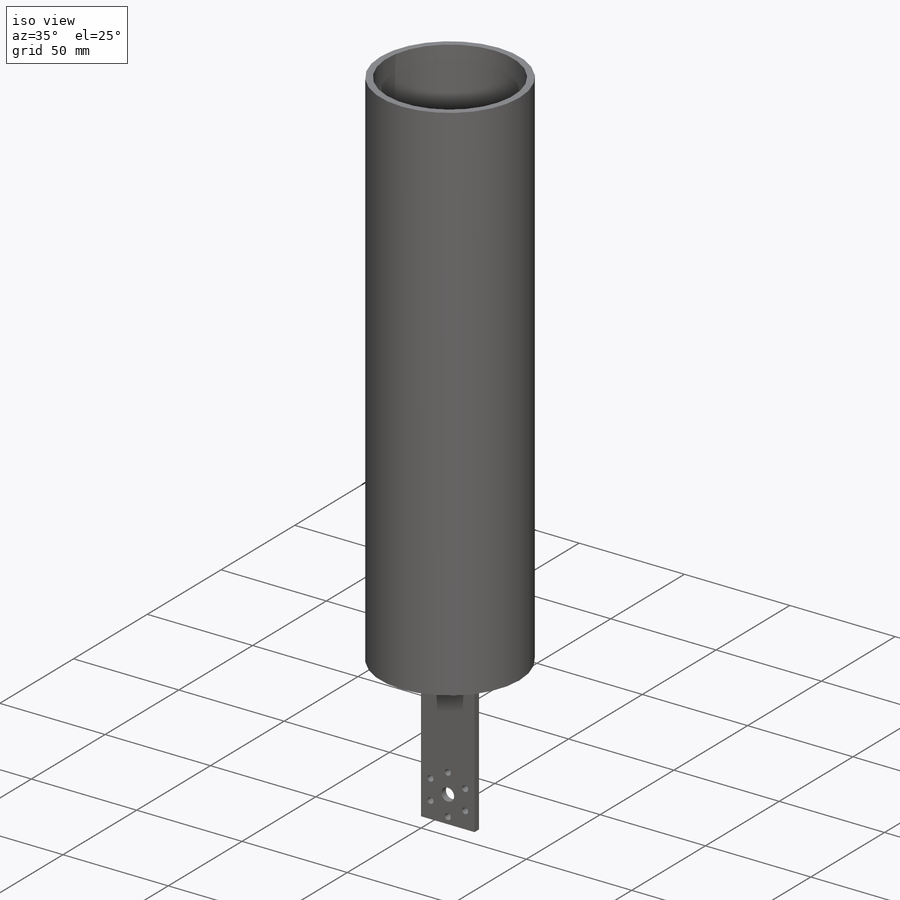
[diagram: iso view]
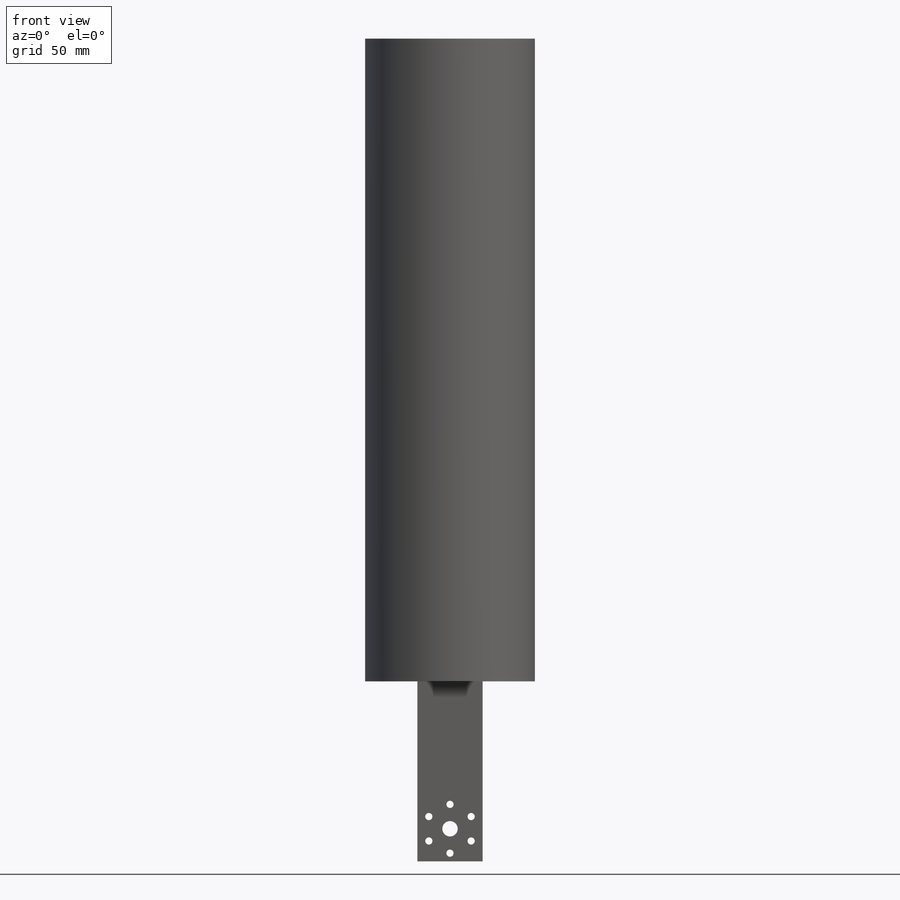
[diagram: front view]
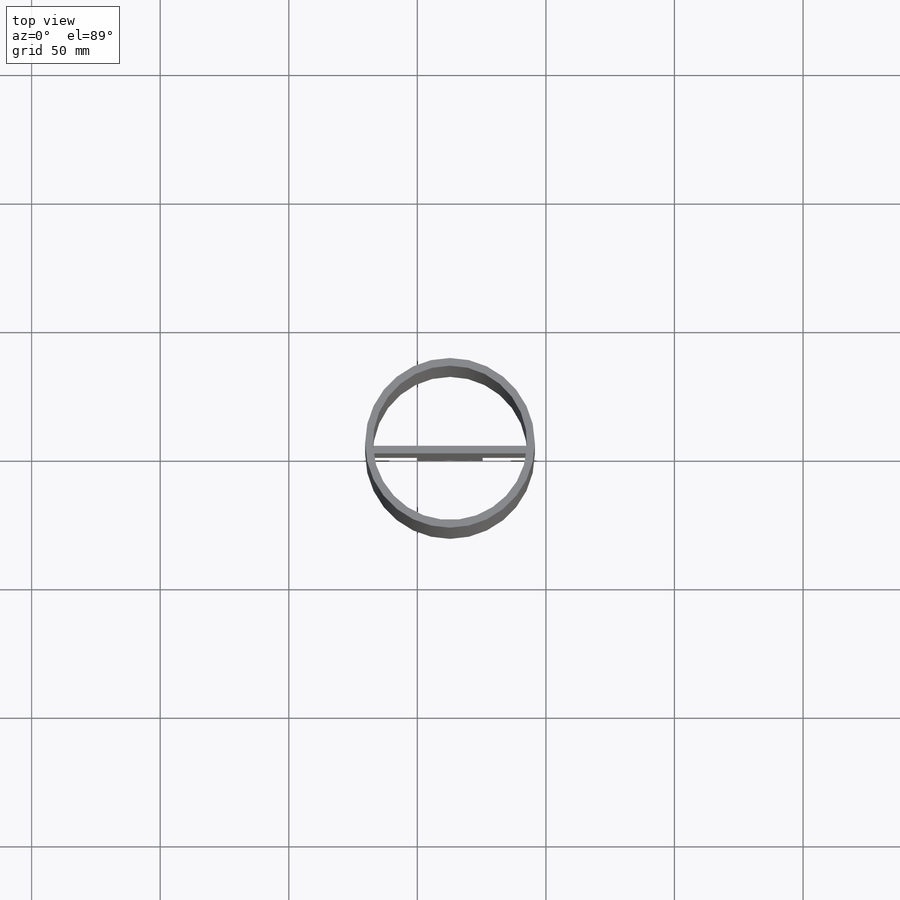
[diagram: top view]
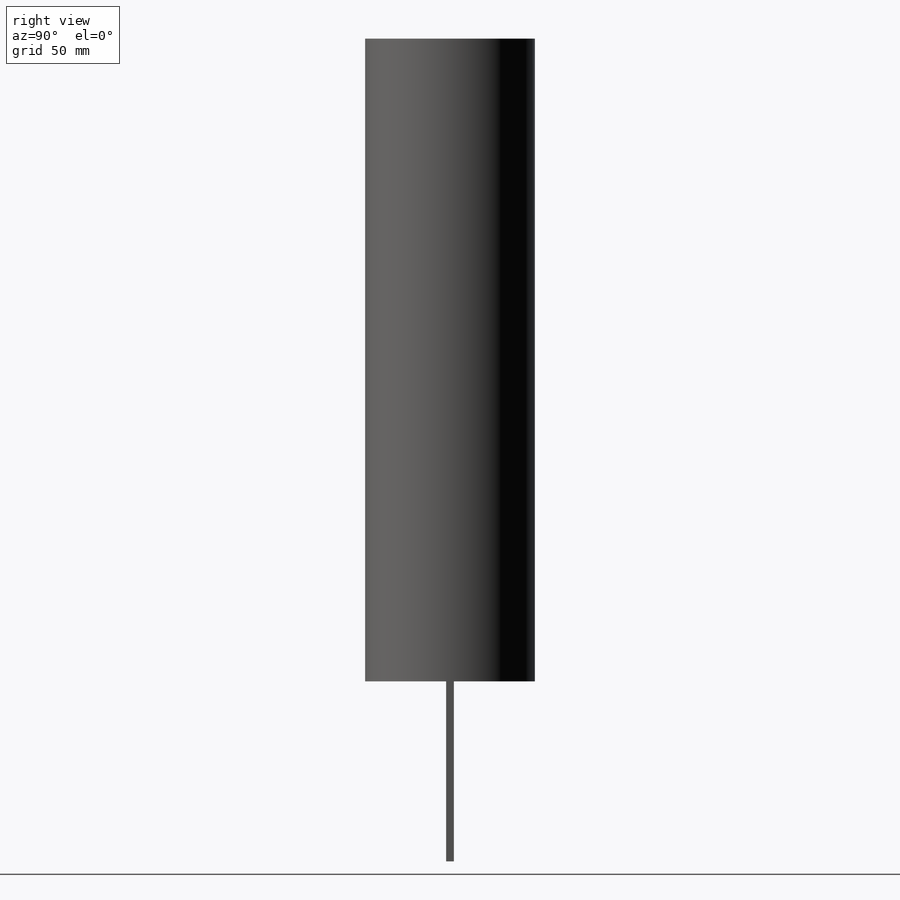
[diagram: right view]
SOLIDWORKS PART (.sldprt)
format: sldprt  version: not decoded by parser v0  size: 165,888 bytes
history: native  units: mm
features: sketch x4, extrude x3, material x1, cut_extrude x1 (+12 scaffold rows collapsed)
feature tree (21):
  scaffold x12  (default folders/planes/origin — collapsed)
  material  "1060 Alloy"
  sketch  "Sketch1"  dims[D1=3.0mm D2=70.0mm D3=3.0mm D4=45.0mm]
  extrude  "Boss-Extrude1"  Depth=25.4mm
  sketch  "Sketch2"  dims[c1.D2=6.0mm c1.D3=19.0mm c1.D4=2.8mm c1.D1=12.7mm c2.D2=~12.921876mm c2.D5=6.0]
  cut_extrude  "Cut-Extrude1"  Depth=25.4mm
  sketch  "Sketch3"  dims[D1=30.0mm D2=3.0mm D3=60.0mm D4=30.0mm]
  extrude  "Boss-Extrude2"  Depth=100mm
  sketch  "Sketch4"  dims[c1.D1=60.0mm c1.D2=66.0mm c2.D1=~61.651515mm]
  extrude  "Boss-Extrude3"  Depth=250mm
decode coverage: 8 of 8 modeling features carry decoded parameters
note: ~ marks probable driven/reference dimensions
note: suppression state not decoded; provenance and decode notes live in map.json
